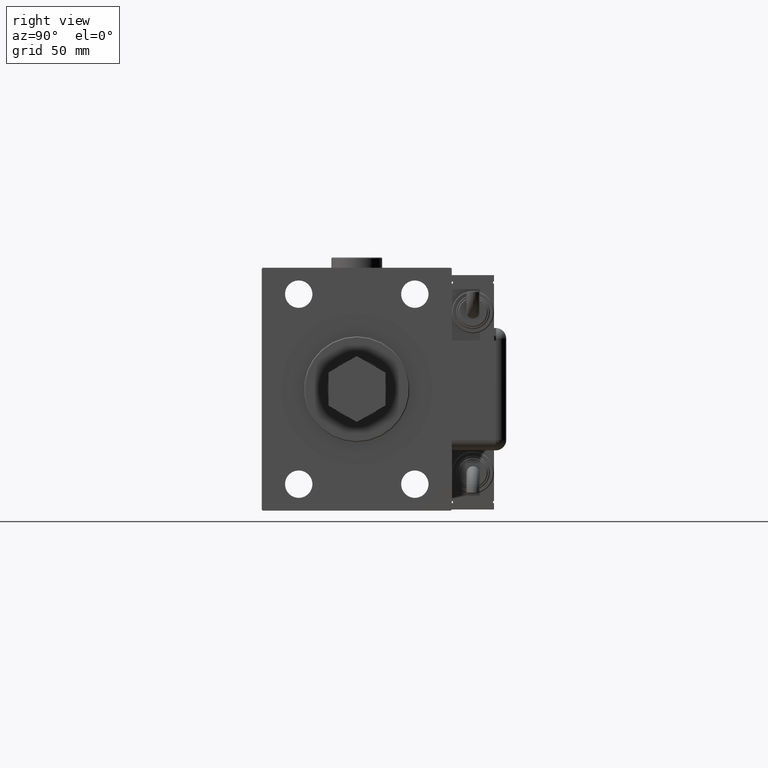
[diagram: clean part render]
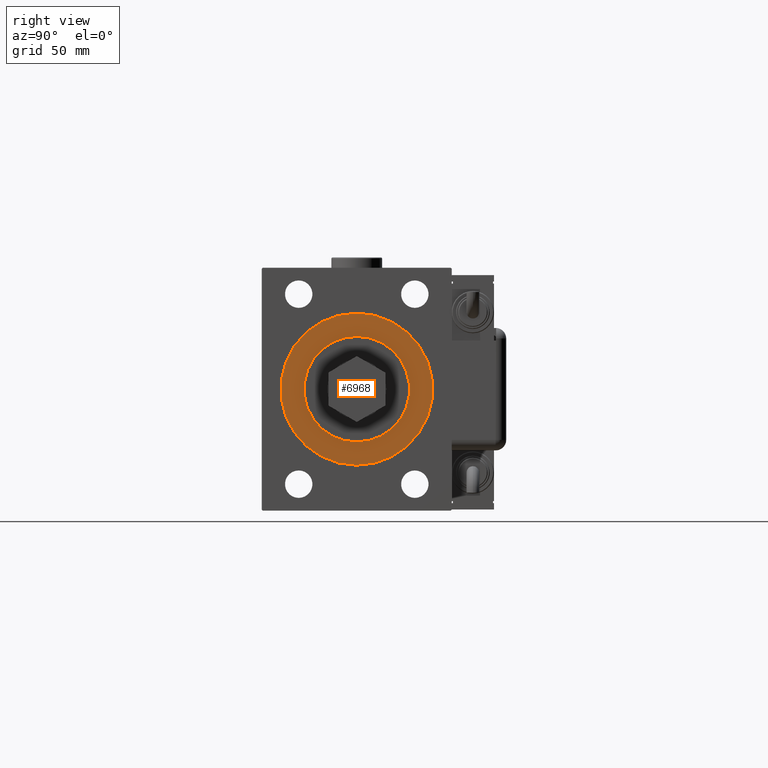
[diagram: same view with one face highlighted and labeled with its STEP entity id]
A machine part, right view. The second image highlights one B-rep face of the part: STEP entity #6968.
In plain terms, the highlighted planar face has unit normal (1, 0, 0).
Its self-contained STEP definition (entity closure, byte-faithful):
#817 = CARTESIAN_POINT ( 'NONE',  ( 118.7000000000000028, 0.000000000000000000, 0.000000000000000000 ) ) ;
#1772 = EDGE_CURVE ( 'NONE', #6034, #47249, #58823, .T. ) ;
#2884 = DIRECTION ( 'NONE',  ( 1.000000000000000000, 0.000000000000000000, 0.000000000000000000 ) ) ;
#5893 = ORIENTED_EDGE ( 'NONE', *, *, #37725, .T. ) ;
#6034 = VERTEX_POINT ( 'NONE', #13071 ) ;
#6968 = ADVANCED_FACE ( 'NONE', ( #61322, #41801 ), #18138, .T. ) ;
#7928 = DIRECTION ( 'NONE',  ( 0.000000000000000000, 0.000000000000000000, -1.000000000000000000 ) ) ;
#8317 = EDGE_CURVE ( 'NONE', #57985, #29860, #44014, .T. ) ;
#9012 = EDGE_CURVE ( 'NONE', #47249, #6034, #56113, .T. ) ;
#10595 = DIRECTION ( 'NONE',  ( 0.000000000000000000, 0.000000000000000000, -1.000000000000000000 ) ) ;
#10792 = AXIS2_PLACEMENT_3D ( 'NONE', #45460, #40112, #22120 ) ;
#13071 = CARTESIAN_POINT ( 'NONE',  ( 118.7000000000000028, 0.000000000000000000, 25.00000000000000000 ) ) ;
#14631 = DIRECTION ( 'NONE',  ( 1.000000000000000000, 0.000000000000000000, 0.000000000000000000 ) ) ;
#18138 = PLANE ( 'NONE',  #31897 ) ;
#20579 = AXIS2_PLACEMENT_3D ( 'NONE', #62224, #14631, #47124 ) ;
#22120 = DIRECTION ( 'NONE',  ( 0.000000000000000000, 0.000000000000000000, -1.000000000000000000 ) ) ;
#22133 = CARTESIAN_POINT ( 'NONE',  ( 118.7000000000000028, 0.000000000000000000, 0.000000000000000000 ) ) ;
#29147 = CARTESIAN_POINT ( 'NONE',  ( 118.7000000000000028, 3.061616997868383043E-15, -25.00000000000000000 ) ) ;
#29860 = VERTEX_POINT ( 'NONE', #51191 ) ;
#30149 = DIRECTION ( 'NONE',  ( 1.000000000000000000, 0.000000000000000000, 0.000000000000000000 ) ) ;
#31897 = AXIS2_PLACEMENT_3D ( 'NONE', #43023, #57520, #42106 ) ;
#37725 = EDGE_CURVE ( 'NONE', #29860, #57985, #62107, .T. ) ;
#37932 = ORIENTED_EDGE ( 'NONE', *, *, #8317, .T. ) ;
#39482 = EDGE_LOOP ( 'NONE', ( #61804, #48591 ) ) ;
#40112 = DIRECTION ( 'NONE',  ( 1.000000000000000000, 0.000000000000000000, 0.000000000000000000 ) ) ;
#41801 = FACE_OUTER_BOUND ( 'NONE', #42583, .T. ) ;
#42106 = DIRECTION ( 'NONE',  ( 0.000000000000000000, 0.000000000000000000, -1.000000000000000000 ) ) ;
#42583 = EDGE_LOOP ( 'NONE', ( #5893, #37932 ) ) ;
#43023 = CARTESIAN_POINT ( 'NONE',  ( 118.7000000000000028, 0.000000000000000000, 0.000000000000000000 ) ) ;
#43434 = CARTESIAN_POINT ( 'NONE',  ( 118.7000000000000028, 4.408728476930470856E-15, 36.00000000000000000 ) ) ;
#44014 = CIRCLE ( 'NONE', #10792, 36.00000000000000000 ) ;
#45460 = CARTESIAN_POINT ( 'NONE',  ( 118.7000000000000028, 0.000000000000000000, 0.000000000000000000 ) ) ;
#47124 = DIRECTION ( 'NONE',  ( 0.000000000000000000, 0.000000000000000000, -1.000000000000000000 ) ) ;
#47152 = AXIS2_PLACEMENT_3D ( 'NONE', #22133, #2884, #7928 ) ;
#47249 = VERTEX_POINT ( 'NONE', #29147 ) ;
#48591 = ORIENTED_EDGE ( 'NONE', *, *, #9012, .F. ) ;
#50051 = AXIS2_PLACEMENT_3D ( 'NONE', #817, #30149, #10595 ) ;
#51191 = CARTESIAN_POINT ( 'NONE',  ( 118.7000000000000028, 0.000000000000000000, -36.00000000000000000 ) ) ;
#56113 = CIRCLE ( 'NONE', #50051, 25.00000000000000000 ) ;
#57520 = DIRECTION ( 'NONE',  ( 1.000000000000000000, 0.000000000000000000, 0.000000000000000000 ) ) ;
#57985 = VERTEX_POINT ( 'NONE', #43434 ) ;
#58823 = CIRCLE ( 'NONE', #20579, 25.00000000000000000 ) ;
#61322 = FACE_BOUND ( 'NONE', #39482, .T. ) ;
#61804 = ORIENTED_EDGE ( 'NONE', *, *, #1772, .F. ) ;
#62107 = CIRCLE ( 'NONE', #47152, 36.00000000000000000 ) ;
#62224 = CARTESIAN_POINT ( 'NONE',  ( 118.7000000000000028, 0.000000000000000000, 0.000000000000000000 ) ) ;